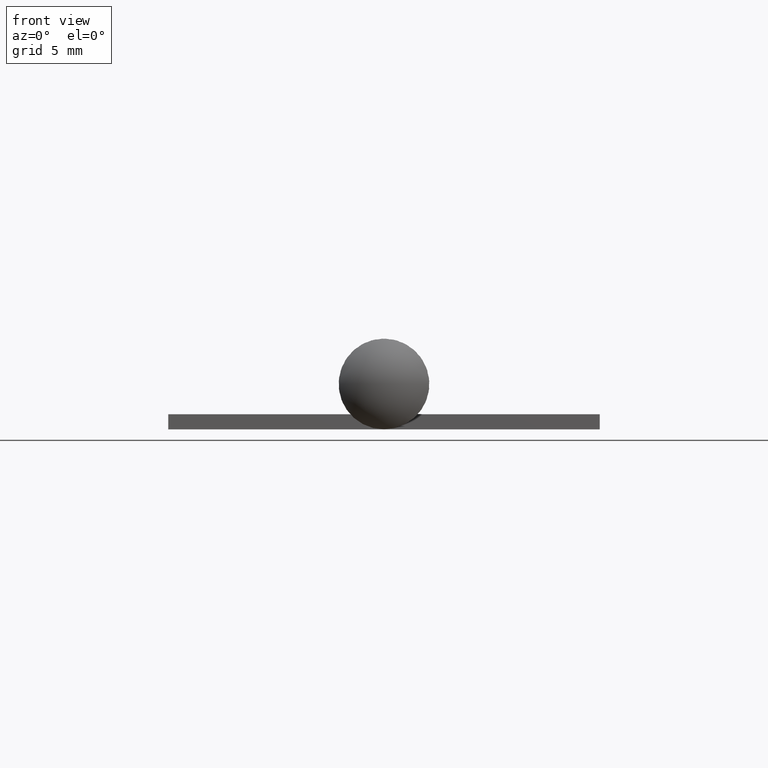
[diagram: clean part render]
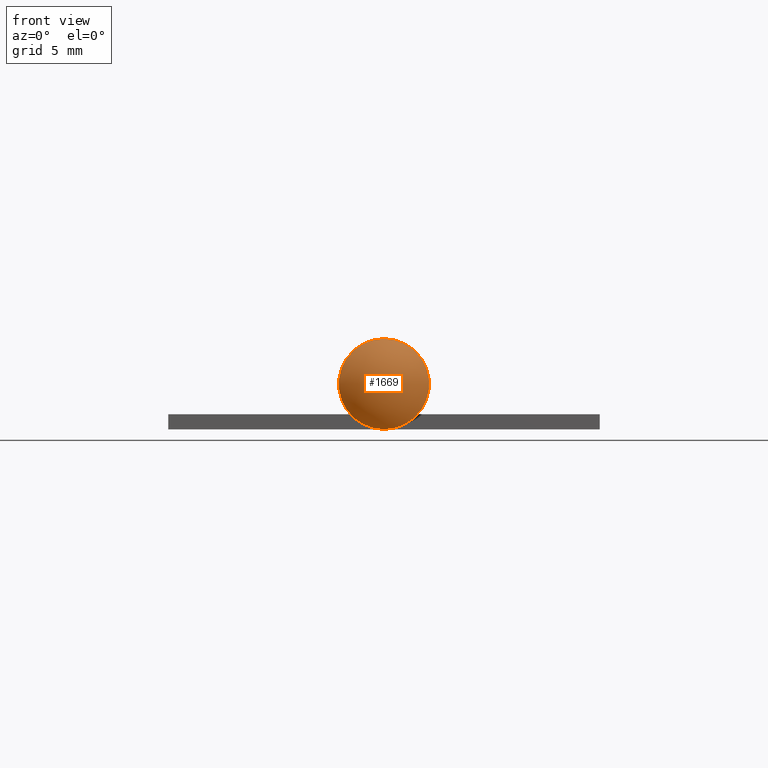
[diagram: same view with one face highlighted and labeled with its STEP entity id]
A machine part, front view. The second image highlights one B-rep face of the part: STEP entity #1669.
In plain terms, the highlighted spherical surface has radius 2.705 mm.
Its self-contained STEP definition (entity closure, byte-faithful):
#380 = DIRECTION ( 'NONE',  ( 0.000000000000000000, 0.000000000000000000, -1.000000000000000000 ) ) ;
#847 = SPHERICAL_SURFACE ( 'NONE', #6019, 2.705000000000000071 ) ;
#1669 = ADVANCED_FACE ( 'NONE', ( #4266 ), #847, .T. ) ;
#2838 = CARTESIAN_POINT ( 'NONE',  ( 0.000000000000000000, -12.55000000000000071, 0.000000000000000000 ) ) ;
#3056 = DIRECTION ( 'NONE',  ( 1.000000000000000000, 0.000000000000000000, 0.000000000000000000 ) ) ;
#4266 = FACE_OUTER_BOUND ( 'NONE', #11004, .T. ) ;
#4933 = AXIS2_PLACEMENT_3D ( 'NONE', #2838, #8038, #380 ) ;
#5882 = ORIENTED_EDGE ( 'NONE', *, *, #7111, .T. ) ;
#6019 = AXIS2_PLACEMENT_3D ( 'NONE', #9889, #6556, #3056 ) ;
#6043 = CARTESIAN_POINT ( 'NONE',  ( 0.000000000000000000, -12.55000000000000071, -2.100000000000000089 ) ) ;
#6264 = VERTEX_POINT ( 'NONE', #6043 ) ;
#6556 = DIRECTION ( 'NONE',  ( 0.000000000000000000, 0.000000000000000000, -1.000000000000000000 ) ) ;
#7111 = EDGE_CURVE ( 'NONE', #6264, #6264, #10544, .T. ) ;
#8038 = DIRECTION ( 'NONE',  ( 0.000000000000000000, -1.000000000000000000, 0.000000000000000000 ) ) ;
#9889 = CARTESIAN_POINT ( 'NONE',  ( 0.000000000000000000, -10.84500000000000064, 0.000000000000000000 ) ) ;
#10544 = CIRCLE ( 'NONE', #4933, 2.100000000000000089 ) ;
#11004 = EDGE_LOOP ( 'NONE', ( #5882 ) ) ;